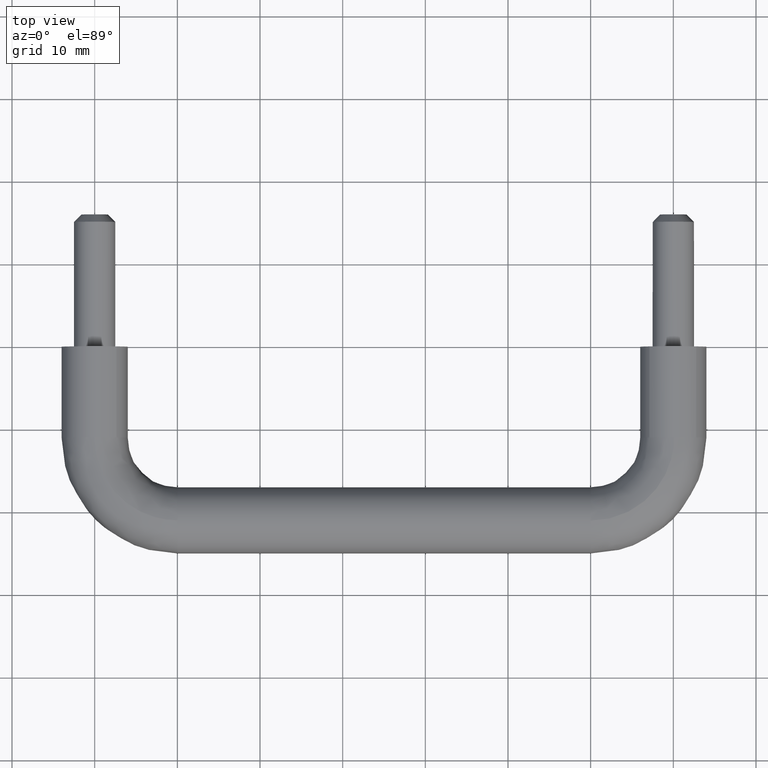
[diagram: clean part render]
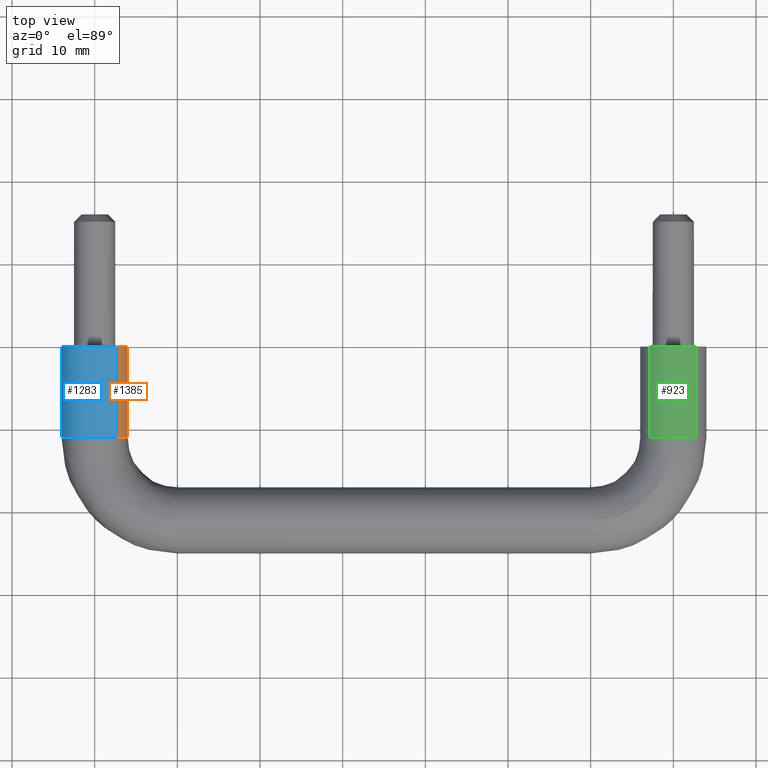
[diagram: same view with three faces highlighted in distinct colors, each labeled with its STEP entity id]
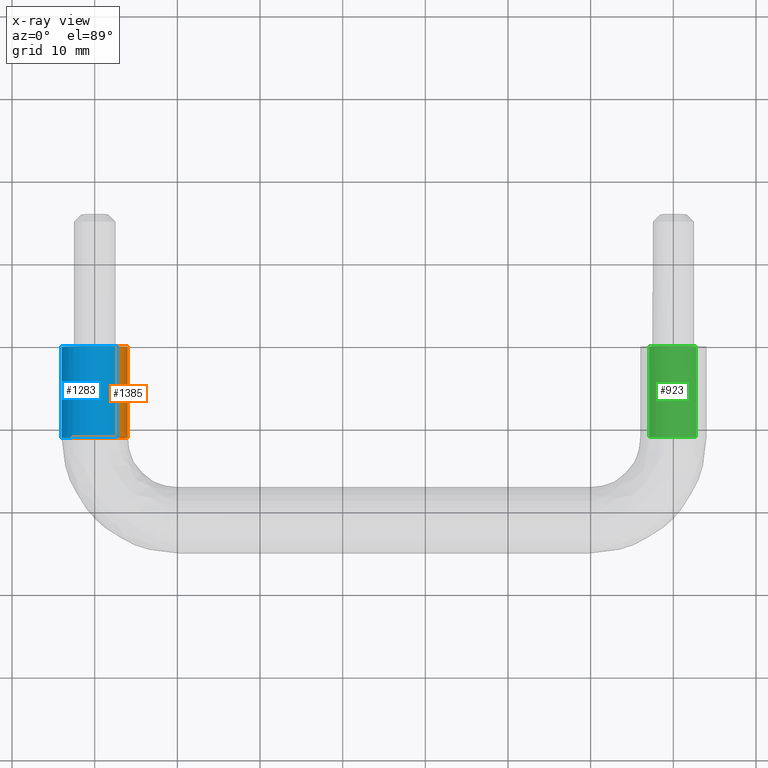
[diagram: x-ray of the same camera — body ghosted, the three highlighted faces saturated]
A machine part, top view with three faces highlighted in distinct colors.
The next image is the same camera in x-ray (body ghosted, the three faces saturated) — at least one of them is partly hidden behind the body in this view.
Their STEP definitions:

[orange] entity #1385 — the highlighted face is a freeform B-spline surface patch.
#1188=CARTESIAN_POINT('',(2.635877884242773,-10.999999999999989,3.008678743129542));
#1189=VERTEX_POINT('',#1188);
#1207=CARTESIAN_POINT('',(2.635877889231022,1.419714E-016,3.008678738759379));
#1208=VERTEX_POINT('',#1207);
#1209=CARTESIAN_POINT('',(2.635877889231022,1.419714E-016,3.008678738759379));
#1210=CARTESIAN_POINT('',(2.635877884242773,-10.999999999999989,3.008678743129542));
#1211=QUASI_UNIFORM_CURVE('',1,(#1209,#1210),.UNSPECIFIED.,.F.,.U.);
#1212=EDGE_CURVE('',#1208,#1189,#1211,.T.);
#1231=CARTESIAN_POINT('',(-2.803636887989971,-1.387779E-016,-2.853001962898352));
#1232=VERTEX_POINT('',#1231);
#1246=CARTESIAN_POINT('',(-2.803636885876161,-11.0,-2.853001964975586));
#1247=VERTEX_POINT('',#1246);
#1248=CARTESIAN_POINT('',(-2.803636887989971,-1.387779E-016,-2.853001962898352));
#1249=CARTESIAN_POINT('',(-2.803636885876161,-11.0,-2.853001964975586));
#1250=QUASI_UNIFORM_CURVE('',1,(#1248,#1249),.UNSPECIFIED.,.F.,.U.);
#1251=EDGE_CURVE('',#1232,#1247,#1250,.T.);
#1284=CARTESIAN_POINT('',(-2.803637057199401,0.275000000010581,-2.853001796616727));
#1285=CARTESIAN_POINT('',(0.049364739417326,0.275000000010581,-5.656638853816128));
#1286=CARTESIAN_POINT('',(2.853001796616727,0.275000000010582,-2.803637057199401));
#1287=CARTESIAN_POINT('',(5.656638853816128,0.275000000010582,0.049364739417326));
#1288=CARTESIAN_POINT('',(2.803637057199401,0.275000000010582,2.853001796616727));
#1289=CARTESIAN_POINT('',(2.721985371512705,0.275000000010582,2.933240684669827));
#1290=CARTESIAN_POINT('',(2.635878288639743,0.275000000010582,3.008678388840790));
#1291=CARTESIAN_POINT('',(-2.803637057199400,-11.281875000434059,-2.853001796616727));
#1292=CARTESIAN_POINT('',(0.049364739417328,-11.281875000434061,-5.656638853816128));
#1293=CARTESIAN_POINT('',(2.853001796616729,-11.281875000434059,-2.803637057199401));
#1294=CARTESIAN_POINT('',(5.656638853816129,-11.281875000434061,0.049364739417326));
#1295=CARTESIAN_POINT('',(2.803637057199402,-11.281875000434059,2.853001796616727));
#1296=CARTESIAN_POINT('',(2.721985371512706,-11.281875000434058,2.933240684669827));
#1297=CARTESIAN_POINT('',(2.635878288639744,-11.281875000434061,3.008678388840790));
#1305=(BOUNDED_SURFACE()B_SPLINE_SURFACE(2,1,((#1284,#1291),(#1285,#1292),(#1286,#1293),(#1287,#1294),(#1288,#1295),(#1289,#1296),(#1290,#1297)),.UNSPECIFIED.,.F.,.F.,.U.)B_SPLINE_SURFACE_WITH_KNOTS((3,2,2,3),(2,2),(0.0,6.627416997969519,13.254833995939039,13.519930675857820),(0.0,11.556875000444640),.UNSPECIFIED.)GEOMETRIC_REPRESENTATION_ITEM()RATIONAL_B_SPLINE_SURFACE(((1.0,1.0),(0.707106781186548,0.707106781186548),(1.0,1.0),(0.707106781186548,0.707106781186548),(1.0,1.0),(0.988284271247462,0.988284271247462),(0.977505800795127,0.977505800795127)))REPRESENTATION_ITEM('')SURFACE());
#1306=CARTESIAN_POINT('',(4.000000000000002,-11.0,0.0));
#1307=VERTEX_POINT('',#1306);
#1308=CARTESIAN_POINT('',(4.000000000000002,-11.0,0.0));
#1309=CARTESIAN_POINT('',(4.000000000000002,-11.0,1.813583271575528));
#1310=CARTESIAN_POINT('',(2.635877884242773,-10.999999999999991,3.008678743129541));
#1318=(BOUNDED_CURVE()B_SPLINE_CURVE(2,(#1308,#1309,#1310),.UNSPECIFIED.,.F.,.U.)B_SPLINE_CURVE_WITH_KNOTS((3,3),(0.500000000000000,0.634954760682260),.UNSPECIFIED.)CURVE()GEOMETRIC_REPRESENTATION_ITEM()RATIONAL_B_SPLINE_CURVE((1.0,0.841890662998295,0.854482187890157))REPRESENTATION_ITEM(''));
#1319=EDGE_CURVE('',#1307,#1189,#1318,.T.);
#1320=ORIENTED_EDGE('',*,*,#1319,.F.);
#1321=CARTESIAN_POINT('',(0.278933007061322,-11.000000000423221,-3.990262695308634));
#1322=VERTEX_POINT('',#1321);
#1323=CARTESIAN_POINT('',(0.278933007061322,-11.000000000423213,-3.990262695308634));
#1324=CARTESIAN_POINT('',(4.000000000000002,-11.0,-3.730147387642936));
#1325=CARTESIAN_POINT('',(4.000000000000002,-11.0,0.0));
#1333=(BOUNDED_CURVE()B_SPLINE_CURVE(2,(#1323,#1324,#1325),.UNSPECIFIED.,.F.,.U.)B_SPLINE_CURVE_WITH_KNOTS((3,3),(0.262166313530340,0.500000000000000),.UNSPECIFIED.)CURVE()GEOMETRIC_REPRESENTATION_ITEM()RATIONAL_B_SPLINE_CURVE((0.972879876248583,0.721360504110527,1.0))REPRESENTATION_ITEM(''));
#1334=EDGE_CURVE('',#1322,#1307,#1333,.T.);
#1335=ORIENTED_EDGE('',*,*,#1334,.F.);
#1336=CARTESIAN_POINT('',(-2.803636885876160,-10.999999999999996,-2.853001964975585));
#1337=CARTESIAN_POINT('',(-1.636442925307402,-11.0,-4.000000000000001));
#1338=CARTESIAN_POINT('',(1.347067E-015,-11.0,-4.0));
#1339=CARTESIAN_POINT('',(0.139636464261182,-11.000000000000005,-4.000000000000000));
#1340=CARTESIAN_POINT('',(0.278933007061322,-11.000000000423217,-3.990262695308635));
#1348=(BOUNDED_CURVE()B_SPLINE_CURVE(2,(#1336,#1337,#1338,#1339,#1340),.UNSPECIFIED.,.F.,.U.)B_SPLINE_CURVE_WITH_KNOTS((3,2,3),(0.126316775713177,0.250000000000000,0.262166313530340),.UNSPECIFIED.)CURVE()GEOMETRIC_REPRESENTATION_ITEM()RATIONAL_B_SPLINE_CURVE((0.853569641698809,0.855096089301625,1.0,0.985746277076021,0.972879876248583))REPRESENTATION_ITEM(''));
#1349=EDGE_CURVE('',#1247,#1322,#1348,.T.);
#1350=ORIENTED_EDGE('',*,*,#1349,.F.);
#1351=ORIENTED_EDGE('',*,*,#1251,.F.);
#1352=CARTESIAN_POINT('',(4.0,0.0,0.0));
#1353=VERTEX_POINT('',#1352);
#1354=CARTESIAN_POINT('',(-2.803636887989971,-1.387779E-016,-2.853001962898351));
#1355=CARTESIAN_POINT('',(-1.636442928767058,0.0,-4.0));
#1356=CARTESIAN_POINT('',(0.0,0.0,-4.0));
#1357=CARTESIAN_POINT('',(4.000000000000000,0.0,-4.000000000000000));
#1358=CARTESIAN_POINT('',(4.0,0.0,0.0));
#1366=(BOUNDED_CURVE()B_SPLINE_CURVE(2,(#1354,#1355,#1356,#1357,#1358),.UNSPECIFIED.,.F.,.U.)B_SPLINE_CURVE_WITH_KNOTS((3,2,3),(0.126316775489584,0.250000000000000,0.500000000000000),.UNSPECIFIED.)CURVE()GEOMETRIC_REPRESENTATION_ITEM()RATIONAL_B_SPLINE_CURVE((0.853569641693290,0.855096089039669,1.0,0.707106781186548,1.0))REPRESENTATION_ITEM(''));
#1367=EDGE_CURVE('',#1232,#1353,#1366,.T.);
#1368=ORIENTED_EDGE('',*,*,#1367,.T.);
#1369=CARTESIAN_POINT('',(4.0,0.0,0.0));
#1370=CARTESIAN_POINT('',(4.0,0.0,1.813583263580447));
#1371=CARTESIAN_POINT('',(2.635877889231022,1.419714E-016,3.008678738759379));
#1379=(BOUNDED_CURVE()B_SPLINE_CURVE(2,(#1369,#1370,#1371),.UNSPECIFIED.,.F.,.U.)B_SPLINE_CURVE_WITH_KNOTS((3,3),(0.500000000000000,0.634954760181385),.UNSPECIFIED.)CURVE()GEOMETRIC_REPRESENTATION_ITEM()RATIONAL_B_SPLINE_CURVE((1.0,0.841890663585106,0.854482187796692))REPRESENTATION_ITEM(''));
#1380=EDGE_CURVE('',#1353,#1208,#1379,.T.);
#1381=ORIENTED_EDGE('',*,*,#1380,.T.);
#1382=ORIENTED_EDGE('',*,*,#1212,.T.);
#1383=EDGE_LOOP('',(#1320,#1335,#1350,#1351,#1368,#1381,#1382));
#1384=FACE_OUTER_BOUND('',#1383,.T.);
#1385=ADVANCED_FACE('',(#1384),#1305,.T.);

[blue] entity #1283 — the highlighted face is a freeform B-spline surface patch.
#1170=CARTESIAN_POINT('',(2.635878288639743,0.275000000010582,3.008678388840790));
#1171=CARTESIAN_POINT('',(-0.205377497417183,0.275000000010581,5.497879117877503));
#1172=CARTESIAN_POINT('',(-2.853001796616727,0.275000000010581,2.803637057199401));
#1173=CARTESIAN_POINT('',(-5.656638853816128,0.275000000010580,-0.049364739417326));
#1174=CARTESIAN_POINT('',(-2.803637057199401,0.275000000010581,-2.853001796616727));
#1175=CARTESIAN_POINT('',(2.635878288639744,-11.281875000434061,3.008678388840790));
#1176=CARTESIAN_POINT('',(-0.205377497417182,-11.281875000434061,5.497879117877503));
#1177=CARTESIAN_POINT('',(-2.853001796616726,-11.281875000434059,2.803637057199401));
#1178=CARTESIAN_POINT('',(-5.656638853816126,-11.281875000434061,-0.049364739417326));
#1179=CARTESIAN_POINT('',(-2.803637057199400,-11.281875000434059,-2.853001796616727));
#1187=(BOUNDED_SURFACE()B_SPLINE_SURFACE(2,1,((#1170,#1175),(#1171,#1176),(#1172,#1177),(#1173,#1178),(#1174,#1179)),.UNSPECIFIED.,.F.,.F.,.U.)B_SPLINE_SURFACE_WITH_KNOTS((3,2,3),(2,2),(0.0,6.362320318050738,12.989737316020260),(0.0,11.556875000444640),.UNSPECIFIED.)GEOMETRIC_REPRESENTATION_ITEM()RATIONAL_B_SPLINE_SURFACE(((0.977505800795127,0.977505800795127),(0.718822509939086,0.718822509939086),(1.0,1.0),(0.707106781186548,0.707106781186548),(1.0,1.0)))REPRESENTATION_ITEM('')SURFACE());
#1188=CARTESIAN_POINT('',(2.635877884242773,-10.999999999999989,3.008678743129542));
#1189=VERTEX_POINT('',#1188);
#1190=CARTESIAN_POINT('',(-0.050264159935794,-11.000000000048550,3.999684176810208));
#1191=VERTEX_POINT('',#1190);
#1192=CARTESIAN_POINT('',(2.635877884242773,-10.999999999999993,3.008678743129542));
#1193=CARTESIAN_POINT('',(1.504350502117724,-11.000000000000002,4.000000000000001));
#1194=CARTESIAN_POINT('',(1.347067E-015,-11.0,4.0));
#1195=CARTESIAN_POINT('',(-0.025133072370000,-10.999999999999998,4.0));
#1196=CARTESIAN_POINT('',(-0.050264159935794,-11.000000000048548,3.999684176810208));
#1204=(BOUNDED_CURVE()B_SPLINE_CURVE(2,(#1192,#1193,#1194,#1195,#1196),.UNSPECIFIED.,.F.,.U.)B_SPLINE_CURVE_WITH_KNOTS((3,2,3),(0.634954760682260,0.750000000000000,0.752215704113659),.UNSPECIFIED.)CURVE()GEOMETRIC_REPRESENTATION_ITEM()RATIONAL_B_SPLINE_CURVE((0.854482187890157,0.865216118188253,1.0,0.997404141160849,0.994854295562566))REPRESENTATION_ITEM(''));
#1205=EDGE_CURVE('',#1189,#1191,#1204,.T.);
#1206=ORIENTED_EDGE('',*,*,#1205,.F.);
#1207=CARTESIAN_POINT('',(2.635877889231022,1.419714E-016,3.008678738759379));
#1208=VERTEX_POINT('',#1207);
#1209=CARTESIAN_POINT('',(2.635877889231022,1.419714E-016,3.008678738759379));
#1210=CARTESIAN_POINT('',(2.635877884242773,-10.999999999999989,3.008678743129542));
#1211=QUASI_UNIFORM_CURVE('',1,(#1209,#1210),.UNSPECIFIED.,.F.,.U.);
#1212=EDGE_CURVE('',#1208,#1189,#1211,.T.);
#1213=ORIENTED_EDGE('',*,*,#1212,.F.);
#1214=CARTESIAN_POINT('',(-4.0,0.0,0.0));
#1215=VERTEX_POINT('',#1214);
#1216=CARTESIAN_POINT('',(2.635877889231022,1.419714E-016,3.008678738759379));
#1217=CARTESIAN_POINT('',(1.504350509687555,0.0,4.000000000000001));
#1218=CARTESIAN_POINT('',(0.0,0.0,4.0));
#1219=CARTESIAN_POINT('',(-4.000000000000000,0.0,4.000000000000000));
#1220=CARTESIAN_POINT('',(-4.0,0.0,0.0));
#1228=(BOUNDED_CURVE()B_SPLINE_CURVE(2,(#1216,#1217,#1218,#1219,#1220),.UNSPECIFIED.,.F.,.U.)B_SPLINE_CURVE_WITH_KNOTS((3,2,3),(0.634954760181384,0.750000000000000,1.0),.UNSPECIFIED.)CURVE()GEOMETRIC_REPRESENTATION_ITEM()RATIONAL_B_SPLINE_CURVE((0.854482187796692,0.865216117601440,1.0,0.707106781186548,1.0))REPRESENTATION_ITEM(''));
#1229=EDGE_CURVE('',#1208,#1215,#1228,.T.);
#1230=ORIENTED_EDGE('',*,*,#1229,.T.);
#1231=CARTESIAN_POINT('',(-2.803636887989971,-1.387779E-016,-2.853001962898352));
#1232=VERTEX_POINT('',#1231);
#1233=CARTESIAN_POINT('',(-4.0,0.0,0.0));
#1234=CARTESIAN_POINT('',(-4.000000000000001,0.0,-1.677339485986745));
#1235=CARTESIAN_POINT('',(-2.803636887989971,-1.387779E-016,-2.853001962898351));
#1243=(BOUNDED_CURVE()B_SPLINE_CURVE(2,(#1233,#1234,#1235),.UNSPECIFIED.,.F.,.U.)B_SPLINE_CURVE_WITH_KNOTS((3,3),(0.0,0.126316775489584),.UNSPECIFIED.)CURVE()GEOMETRIC_REPRESENTATION_ITEM()RATIONAL_B_SPLINE_CURVE((1.0,0.852010692146878,0.853569641693290))REPRESENTATION_ITEM(''));
#1244=EDGE_CURVE('',#1215,#1232,#1243,.T.);
#1245=ORIENTED_EDGE('',*,*,#1244,.T.);
#1246=CARTESIAN_POINT('',(-2.803636885876161,-11.0,-2.853001964975586));
#1247=VERTEX_POINT('',#1246);
#1248=CARTESIAN_POINT('',(-2.803636887989971,-1.387779E-016,-2.853001962898352));
#1249=CARTESIAN_POINT('',(-2.803636885876161,-11.0,-2.853001964975586));
#1250=QUASI_UNIFORM_CURVE('',1,(#1248,#1249),.UNSPECIFIED.,.F.,.U.);
#1251=EDGE_CURVE('',#1232,#1247,#1250,.T.);
#1252=ORIENTED_EDGE('',*,*,#1251,.T.);
#1253=CARTESIAN_POINT('',(-3.999999999999998,-11.0,0.0));
#1254=VERTEX_POINT('',#1253);
#1255=CARTESIAN_POINT('',(-3.999999999999998,-11.0,0.0));
#1256=CARTESIAN_POINT('',(-3.999999999999999,-11.0,-1.677339489471504));
#1257=CARTESIAN_POINT('',(-2.803636885876160,-10.999999999999996,-2.853001964975585));
#1265=(BOUNDED_CURVE()B_SPLINE_CURVE(2,(#1255,#1256,#1257),.UNSPECIFIED.,.F.,.U.)B_SPLINE_CURVE_WITH_KNOTS((3,3),(0.0,0.126316775713177),.UNSPECIFIED.)CURVE()GEOMETRIC_REPRESENTATION_ITEM()RATIONAL_B_SPLINE_CURVE((1.0,0.852010691884923,0.853569641698809))REPRESENTATION_ITEM(''));
#1266=EDGE_CURVE('',#1254,#1247,#1265,.T.);
#1267=ORIENTED_EDGE('',*,*,#1266,.F.);
#1268=CARTESIAN_POINT('',(-0.050264159935794,-11.000000000048553,3.999684176810208));
#1269=CARTESIAN_POINT('',(-3.999999999999998,-11.0,3.950047718834405));
#1270=CARTESIAN_POINT('',(-3.999999999999998,-11.0,0.0));
#1278=(BOUNDED_CURVE()B_SPLINE_CURVE(2,(#1268,#1269,#1270),.UNSPECIFIED.,.F.,.U.)B_SPLINE_CURVE_WITH_KNOTS((3,3),(0.752215704113658,1.0),.UNSPECIFIED.)CURVE()GEOMETRIC_REPRESENTATION_ITEM()RATIONAL_B_SPLINE_CURVE((0.994854295562567,0.709702640025698,1.0))REPRESENTATION_ITEM(''));
#1279=EDGE_CURVE('',#1191,#1254,#1278,.T.);
#1280=ORIENTED_EDGE('',*,*,#1279,.F.);
#1281=EDGE_LOOP('',(#1206,#1213,#1230,#1245,#1252,#1267,#1280));
#1282=FACE_OUTER_BOUND('',#1281,.T.);
#1283=ADVANCED_FACE('',(#1282),#1187,.T.);

[green] entity #923 — the highlighted face is a freeform B-spline surface patch.
#734=CARTESIAN_POINT('',(72.753417929688240,3.245321E-014,2.901497838095193));
#735=VERTEX_POINT('',#734);
#751=CARTESIAN_POINT('',(72.753417502998204,-11.000000000199600,2.901498242596409));
#752=VERTEX_POINT('',#751);
#753=CARTESIAN_POINT('',(72.753417502998204,-11.000000000199600,2.901498242596409));
#754=CARTESIAN_POINT('',(72.753417929688240,3.245321E-014,2.901497838095193));
#755=QUASI_UNIFORM_CURVE('',1,(#753,#754),.UNSPECIFIED.,.F.,.U.);
#756=EDGE_CURVE('',#752,#735,#755,.T.);
#805=CARTESIAN_POINT('',(67.098502167182076,-11.000000000000011,2.753417935249319));
#806=VERTEX_POINT('',#805);
#820=CARTESIAN_POINT('',(67.098502171384510,8.805456E-015,2.753417939677762));
#821=VERTEX_POINT('',#820);
#822=CARTESIAN_POINT('',(67.098502167182076,-11.000000000000011,2.753417935249319));
#823=CARTESIAN_POINT('',(67.098502171384510,8.805456E-015,2.753417939677762));
#824=QUASI_UNIFORM_CURVE('',1,(#822,#823),.UNSPECIFIED.,.F.,.U.);
#825=EDGE_CURVE('',#806,#821,#824,.T.);
#860=CARTESIAN_POINT('',(67.098502515950855,-11.275000000639951,2.753418302775015));
#861=CARTESIAN_POINT('',(69.851920818725887,-11.275000000639949,5.654915786824165));
#862=CARTESIAN_POINT('',(72.753418302775017,-11.275000000639951,2.901497484049150));
#863=CARTESIAN_POINT('',(67.098502515950855,0.281875000016008,2.753418302775015));
#864=CARTESIAN_POINT('',(69.851920818725887,0.281875000016008,5.654915786824165));
#865=CARTESIAN_POINT('',(72.753418302775017,0.281875000016008,2.901497484049150));
#873=(BOUNDED_SURFACE()B_SPLINE_SURFACE(2,1,((#860,#863),(#861,#864),(#862,#865)),.UNSPECIFIED.,.F.,.F.,.U.)B_SPLINE_SURFACE_WITH_KNOTS((3,3),(2,2),(0.0,6.627416997969515),(0.0,11.556875000655960),.UNSPECIFIED.)GEOMETRIC_REPRESENTATION_ITEM()RATIONAL_B_SPLINE_SURFACE(((1.0,1.0),(0.707106781186548,0.707106781186548),(1.0,1.0)))REPRESENTATION_ITEM('')SURFACE());
#874=CARTESIAN_POINT('',(67.098502171384524,8.805456E-015,2.753417939677761));
#875=CARTESIAN_POINT('',(68.281463783170381,8.673617E-015,4.0));
#876=CARTESIAN_POINT('',(70.0,8.673617E-015,4.0));
#877=CARTESIAN_POINT('',(71.595837587691776,8.673617E-015,4.000000000000001));
#878=CARTESIAN_POINT('',(72.753417929688240,3.245321E-014,2.901497838095193));
#886=(BOUNDED_CURVE()B_SPLINE_CURVE(2,(#874,#875,#876,#877,#878),.UNSPECIFIED.,.F.,.U.)B_SPLINE_CURVE_WITH_KNOTS((3,2,3),(0.621049488887871,0.750000000000000,0.871049487848710),.UNSPECIFIED.)CURVE()GEOMETRIC_REPRESENTATION_ITEM()RATIONAL_B_SPLINE_CURVE((0.853699664166494,0.848925078930915,1.0,0.858181703473085,0.853699664243447))REPRESENTATION_ITEM(''));
#887=EDGE_CURVE('',#821,#735,#886,.T.);
#888=ORIENTED_EDGE('',*,*,#887,.F.);
#889=ORIENTED_EDGE('',*,*,#825,.F.);
#890=CARTESIAN_POINT('',(70.100520384564703,-11.000000000624340,3.998736757063030));
#891=VERTEX_POINT('',#890);
#892=CARTESIAN_POINT('',(67.098502167182076,-11.000000000000011,2.753417935249319));
#893=CARTESIAN_POINT('',(68.281463775938448,-11.0,4.000000000000001));
#894=CARTESIAN_POINT('',(70.0,-11.0,4.0));
#895=CARTESIAN_POINT('',(70.050268131286202,-11.000000000000004,4.000000000000001));
#896=CARTESIAN_POINT('',(70.100520384564703,-11.000000000624341,3.998736757063030));
#904=(BOUNDED_CURVE()B_SPLINE_CURVE(2,(#892,#893,#894,#895,#896),.UNSPECIFIED.,.F.,.U.)B_SPLINE_CURVE_WITH_KNOTS((3,2,3),(0.621049488427202,0.750000000000000,0.754420108474482),.UNSPECIFIED.)CURVE()GEOMETRIC_REPRESENTATION_ITEM()RATIONAL_B_SPLINE_CURVE((0.853699664200608,0.848925078391208,1.0,0.994821520805617,0.989826157129410))REPRESENTATION_ITEM(''));
#905=EDGE_CURVE('',#806,#891,#904,.T.);
#906=ORIENTED_EDGE('',*,*,#905,.T.);
#907=CARTESIAN_POINT('',(70.100520384564703,-11.000000000624345,3.998736757063030));
#908=CARTESIAN_POINT('',(71.637893708832209,-11.000000000378193,3.960090211551882));
#909=CARTESIAN_POINT('',(72.753417502998204,-11.000000000199599,2.901498242596409));
#917=(BOUNDED_CURVE()B_SPLINE_CURVE(2,(#907,#908,#909),.UNSPECIFIED.,.F.,.U.)B_SPLINE_CURVE_WITH_KNOTS((3,3),(0.754420108474482,0.871049485096384),.UNSPECIFIED.)CURVE()GEOMETRIC_REPRESENTATION_ITEM()RATIONAL_B_SPLINE_CURVE((0.989826157129411,0.858018045423753,0.853699664447265))REPRESENTATION_ITEM(''));
#918=EDGE_CURVE('',#891,#752,#917,.T.);
#919=ORIENTED_EDGE('',*,*,#918,.T.);
#920=ORIENTED_EDGE('',*,*,#756,.T.);
#921=EDGE_LOOP('',(#888,#889,#906,#919,#920));
#922=FACE_OUTER_BOUND('',#921,.T.);
#923=ADVANCED_FACE('',(#922),#873,.T.);